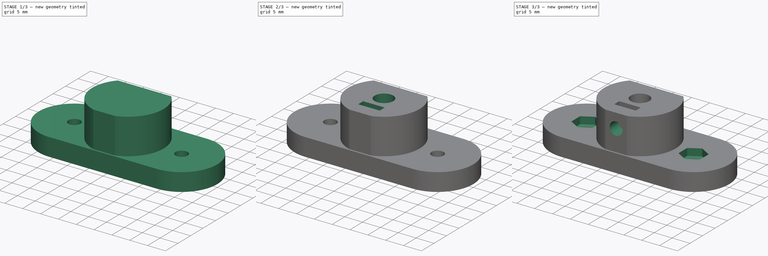
[diagram: build sequence overview — one tinted view per stage of 3, left to right]
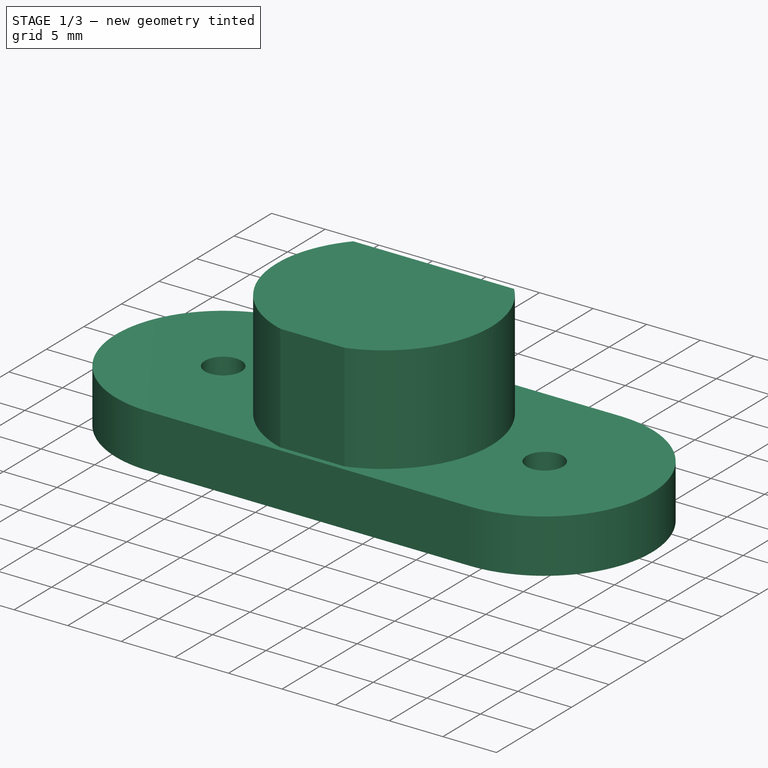
[diagram: stage 1 of 3 — iso view after this stage's code; geometry added in this stage tinted green]
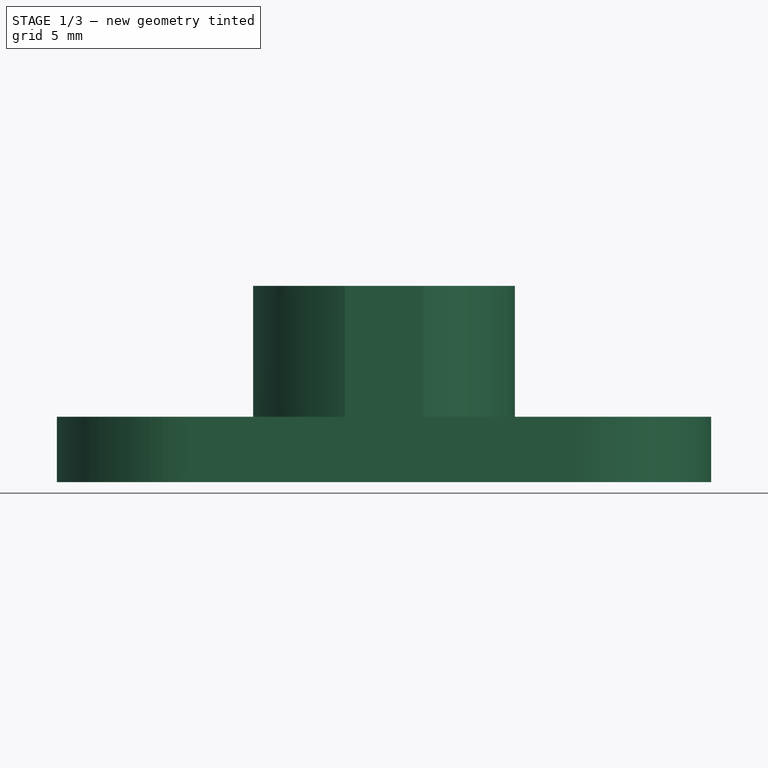
[diagram: stage 1 of 3 — front view after this stage's code; geometry added in this stage tinted green]
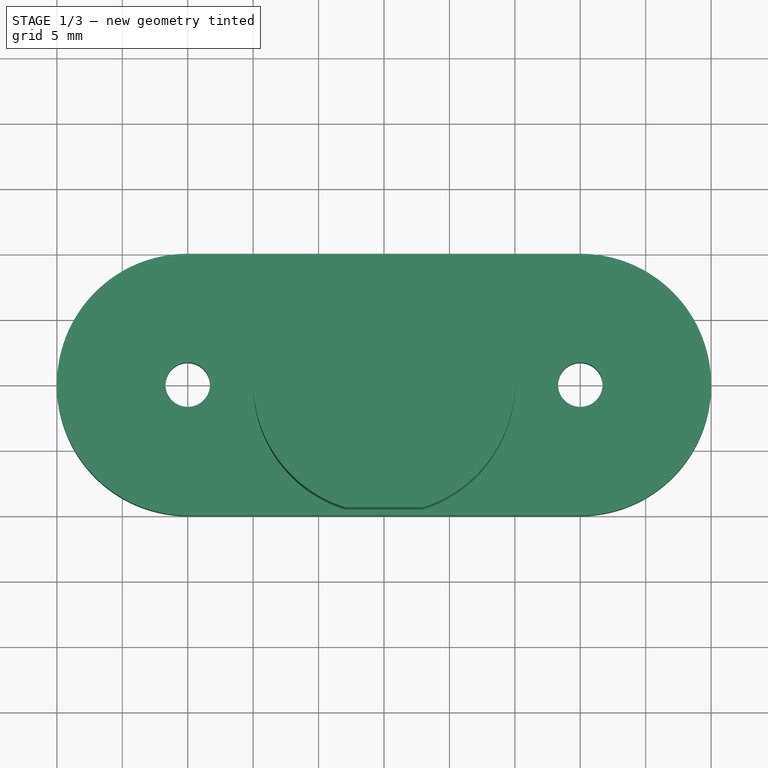
[diagram: stage 1 of 3 — top view after this stage's code; geometry added in this stage tinted green]
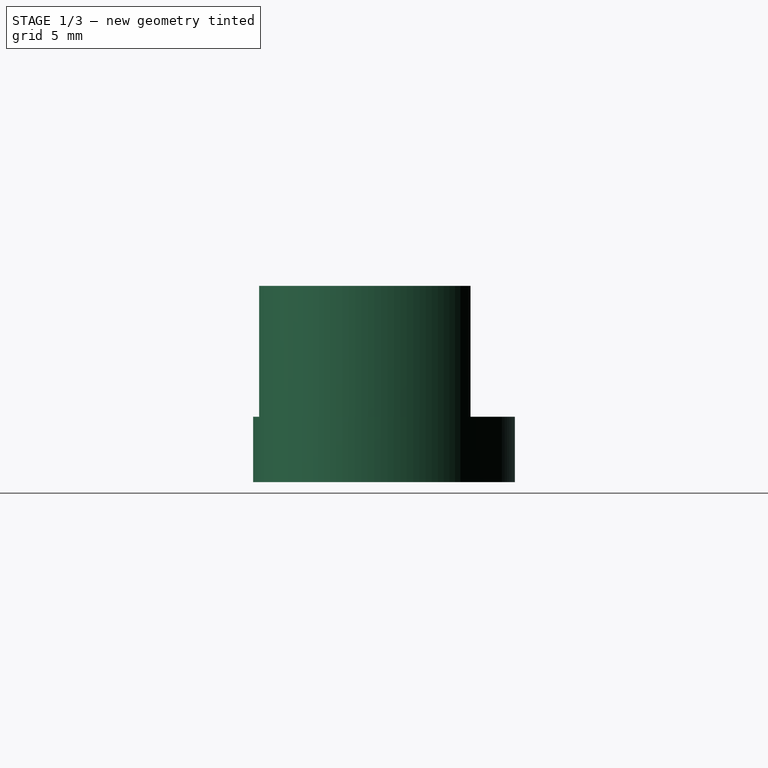
[diagram: stage 1 of 3 — right view after this stage's code; geometry added in this stage tinted green]
FCSTD DOCUMENT
Label: AmrShaftCoupler
objects: Sketcher::SketchObject×6, PartDesign::Pocket×4, PartDesign::Pad×2
note: 14 computed .brp shape members not serialized (recipe doc carries the construction recipe); baked Part::Feature solids carry a one-line shape summary decoded from their .brp

FEATURE [Sketcher::SketchObject] Sketch
  sketch-geometry (6):
    g0: ArcOfCircle CenterX=10 CenterY=10 CenterZ=0 NormalX=0 NormalY=0 NormalZ=1 Radius=10 StartAngle=1.5708 EndAngle=4.71239
    g1: ArcOfCircle CenterX=39.9999 CenterY=10 CenterZ=0 NormalX=0 NormalY=0 NormalZ=1 Radius=10 StartAngle=4.71239 EndAngle=7.85398
    g2: LineSegment StartX=10 StartY=20 StartZ=0 EndX=39.9999 EndY=20 EndZ=0
    g3: LineSegment StartX=9.99997 StartY=0 StartZ=0 EndX=40 EndY=0 EndZ=0
    g4: Circle CenterX=39.9999 CenterY=10 CenterZ=0 NormalX=0 NormalY=0 NormalZ=1 Radius=1.7
    g5: Circle CenterX=10 CenterY=10 CenterZ=0 NormalX=0 NormalY=0 NormalZ=1 Radius=1.7
  constraints (18):
    c: Coincident(g2,g0)
    c: Coincident(g2,g1)
    c: Horizontal(g2)
    c: Coincident(g3,g0)
    c: Coincident(g3,g1)
    c: Horizontal(g3)
    c: Tangent(g0,g2)
    c: Tangent(g2,g1)
    c: Tangent(g1,g3)
    c: Tangent(g3,g0)
    c: Coincident(g4,g1)
    c: Coincident(g5,g0)
    c: Equal(g5,g4)
    c: Radius(g5) = 1.7
    c: Radius(g1) = 10
    c: DistanceX(g3) = 30
    c: DistanceX(g0) = 10
    c: DistanceY(g0) = 10
FEATURE [PartDesign::Pad] Pad
  Length = 5
  MirroredExtent = false
  Sketch = -> Sketch
FEATURE [Sketcher::SketchObject] Sketch001
  Placement = pos=(0,0,5) rot=(0,0,1;0rad)
  Support = -> Pad [Face8]
  sketch-geometry (4):
    g0: ArcOfCircle CenterX=25 CenterY=10 CenterZ=0 NormalX=0 NormalY=0 NormalZ=1 Radius=10 StartAngle=5.01708 EndAngle=7.00592
    g1: ArcOfCircle CenterX=25 CenterY=10 CenterZ=0 NormalX=0 NormalY=0 NormalZ=1 Radius=10 StartAngle=2.41886 EndAngle=4.4077
    g2: LineSegment StartX=17.5 StartY=16.6144 StartZ=0 EndX=32.5 EndY=16.6144 EndZ=0
    g3: LineSegment StartX=22 StartY=0.460608 StartZ=0 EndX=28 EndY=0.460608 EndZ=0
  constraints (13):
    c: Coincident(g1,g0)
    c: Equal(g0,g1)
    c: Radius(g0) = 10
    c: Coincident(g2,g1)
    c: Coincident(g2,g0)
    c: Horizontal(g2)
    c: Coincident(g3,g1)
    c: Coincident(g3,g0)
    c: Horizontal(g3)
    c: DistanceX(g0) = 25
    c: DistanceY(g0) = 10
    c: DistanceX(g3) = 6
    c: DistanceX(g2) = 15
FEATURE [PartDesign::Pad] Pad001
  Length = 10
  MirroredExtent = false
  Sketch = -> Sketch001
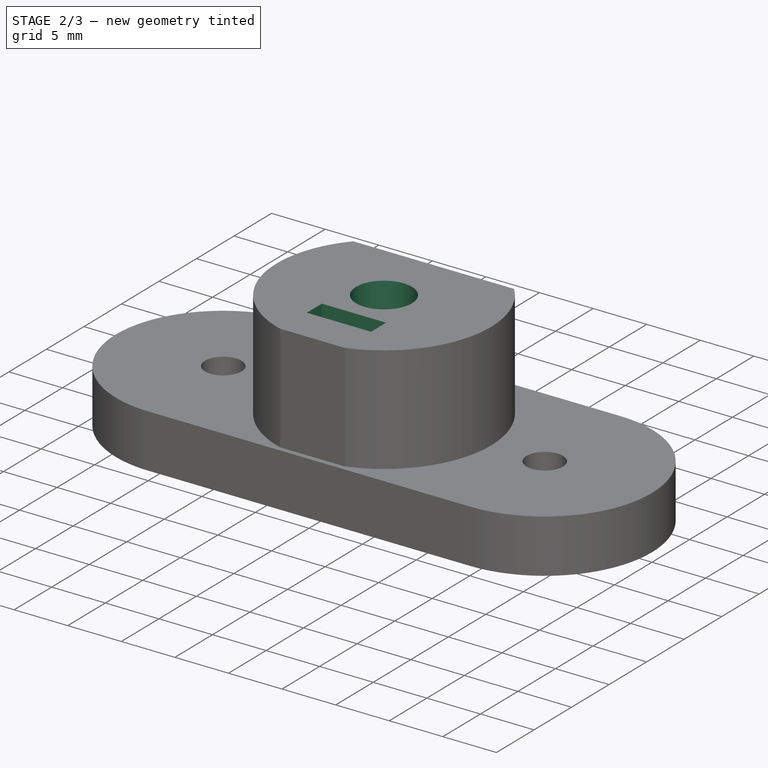
[diagram: stage 2 of 3 — iso view after this stage's code; geometry added in this stage tinted green]
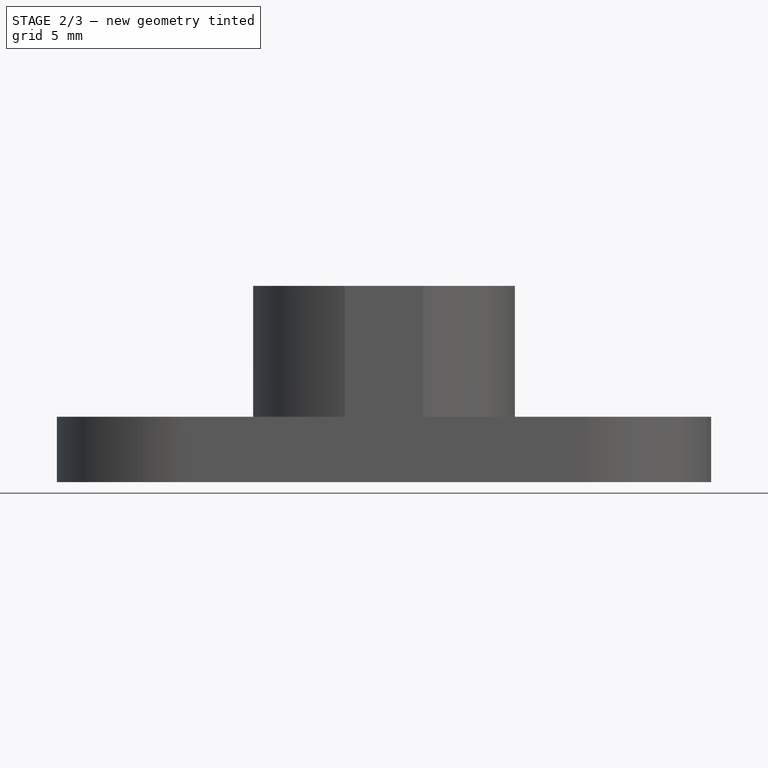
[diagram: stage 2 of 3 — front view after this stage's code; geometry added in this stage tinted green]
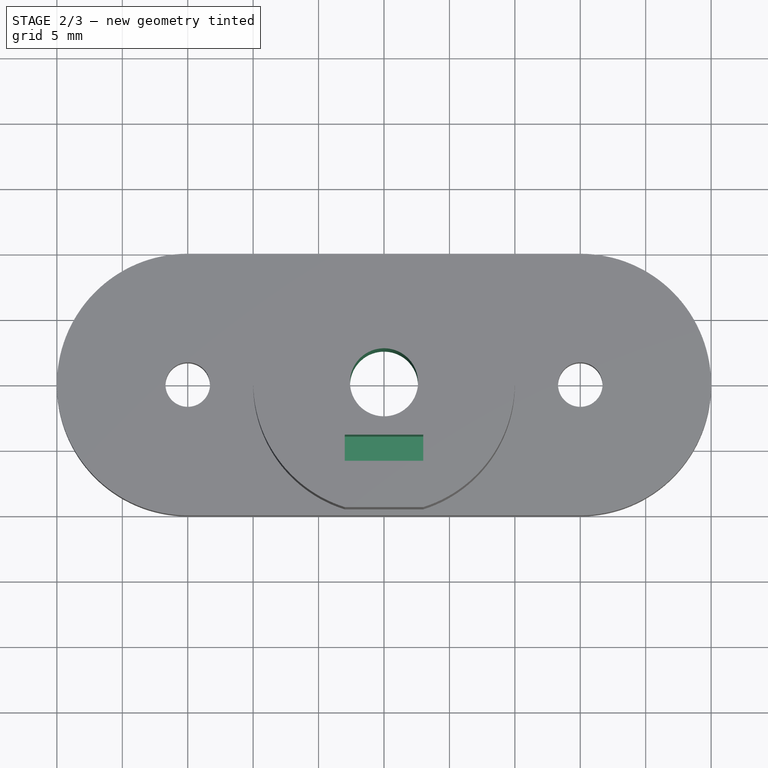
[diagram: stage 2 of 3 — top view after this stage's code; geometry added in this stage tinted green]
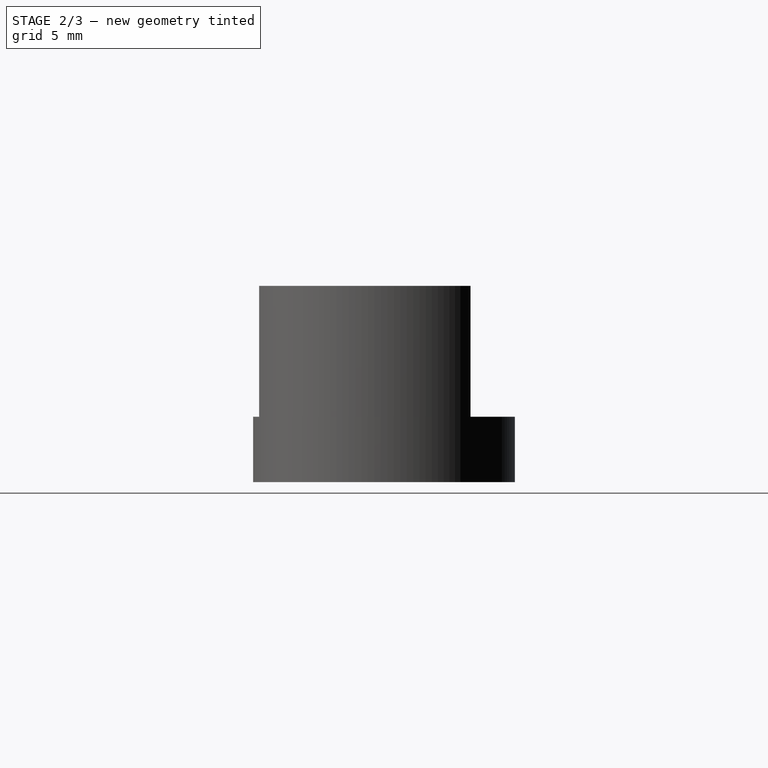
[diagram: stage 2 of 3 — right view after this stage's code; geometry added in this stage tinted green]
FEATURE [Sketcher::SketchObject] Sketch002
  Placement = pos=(0,0,15) rot=(0,0,1;0rad)
  Support = -> Pad001 [Face13]
  sketch-geometry (1):
    g0: Circle CenterX=25 CenterY=10 CenterZ=0 NormalX=0 NormalY=0 NormalZ=1 Radius=2.6
  constraints (3):
    c: DistanceX(g0) = 25
    c: DistanceY(g0) = 10
    c: Radius(g0) = 2.6
FEATURE [PartDesign::Pocket] Pocket
  Length = 15
  Sketch = -> Sketch002
  Type = 0
FEATURE [Sketcher::SketchObject] Sketch003
  Placement = pos=(0,0,15) rot=(0,0,1;0rad)
  Support = -> Pocket [Face14]
  sketch-geometry (5):
    g0: LineSegment StartX=22 StartY=6 StartZ=0 EndX=28 EndY=6 EndZ=0
    g1: LineSegment StartX=28 StartY=6 StartZ=0 EndX=28 EndY=4 EndZ=0
    g2: LineSegment StartX=22 StartY=4 StartZ=0 EndX=22 EndY=6 EndZ=0
    g3: LineSegment StartX=22 StartY=4 StartZ=0 EndX=25 EndY=4 EndZ=0
    g4: LineSegment StartX=25 StartY=4 StartZ=0 EndX=28 EndY=4 EndZ=0
  constraints (15):
    c: Coincident(g0,g1)
    c: Coincident(g2,g0)
    c: Horizontal(g0)
    c: Vertical(g1)
    c: Vertical(g2)
    c: Coincident(g3,g2)
    c: Coincident(g3,g4)
    c: Coincident(g4,g1)
    c: Horizontal(g3)
    c: Horizontal(g4)
    c: Equal(g4,g3)
    c: DistanceX(g2,g1) = 6
    c: DistanceY(g2) = 2
    c: DistanceX(g3) = 25
    c: DistanceY(g3) = 4
FEATURE [PartDesign::Pocket] Pocket001
  Length = 9
  Sketch = -> Sketch003
  Type = 0
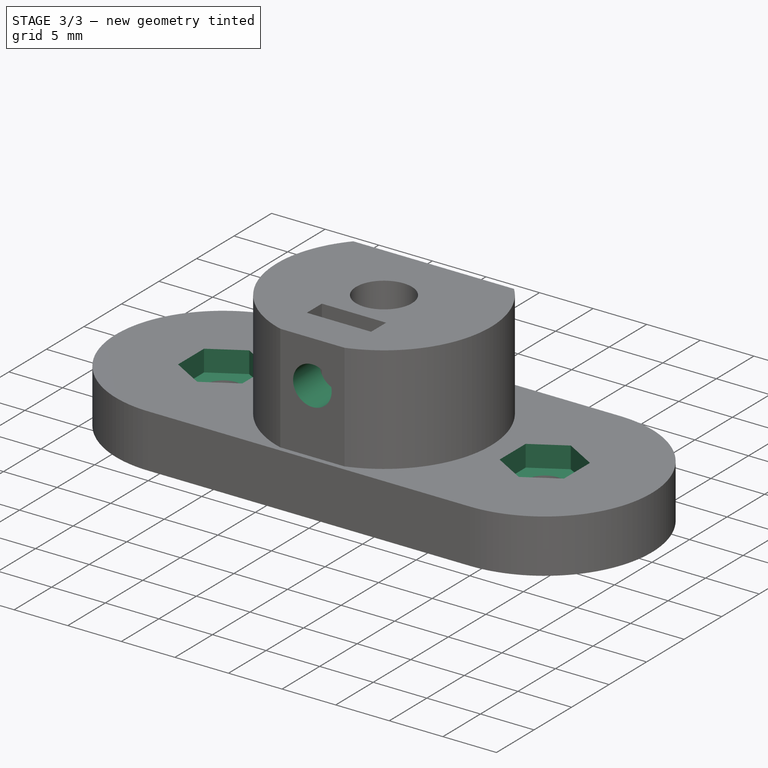
[diagram: stage 3 of 3 — iso view after this stage's code; geometry added in this stage tinted green]
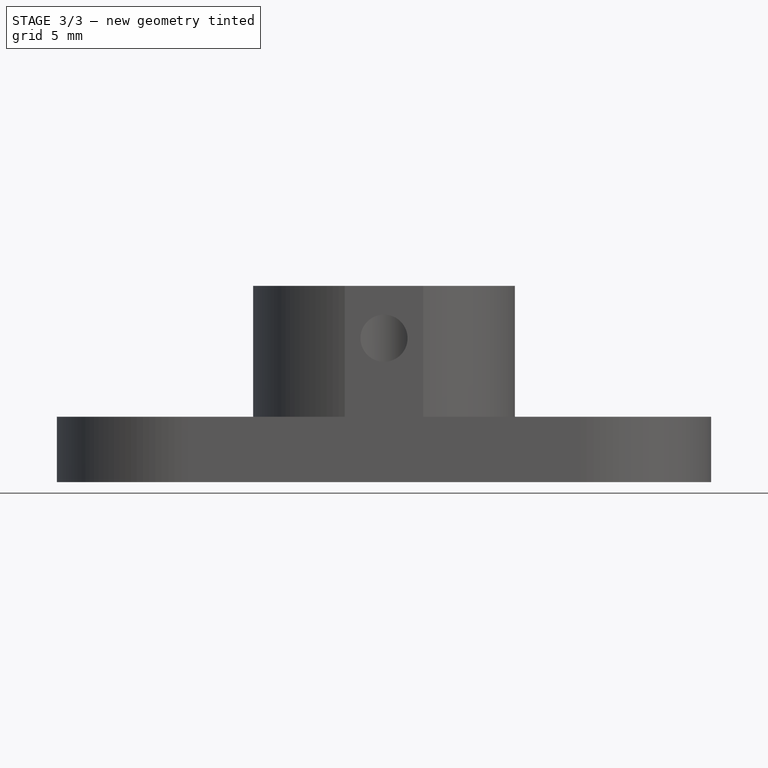
[diagram: stage 3 of 3 — front view after this stage's code; geometry added in this stage tinted green]
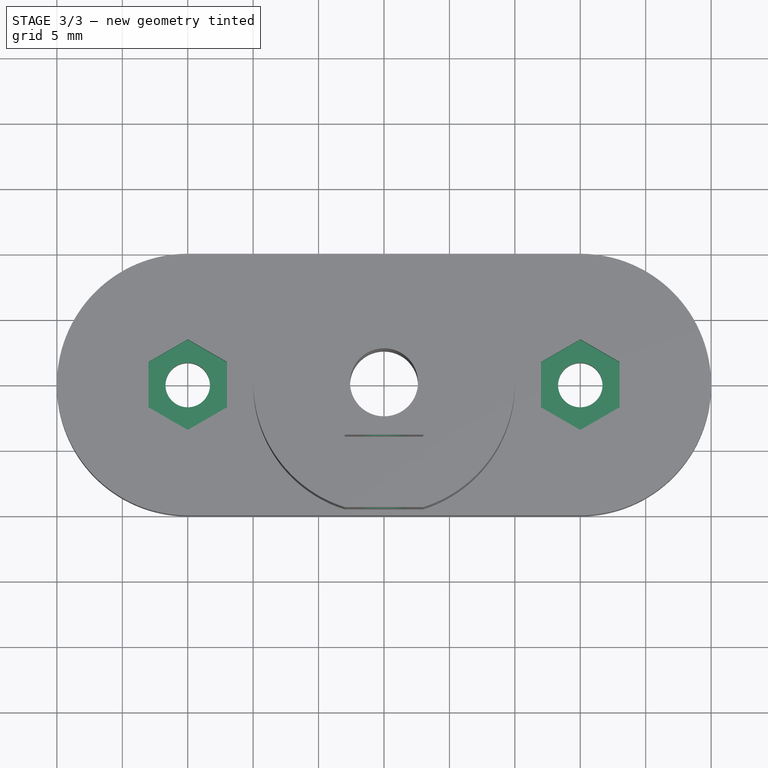
[diagram: stage 3 of 3 — top view after this stage's code; geometry added in this stage tinted green]
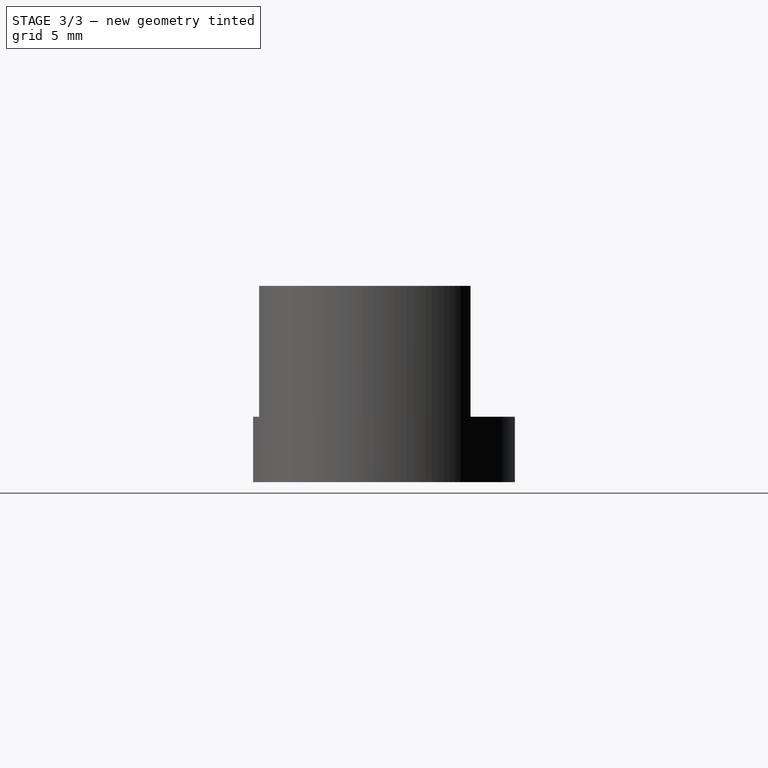
[diagram: stage 3 of 3 — right view after this stage's code; geometry added in this stage tinted green]
FEATURE [Sketcher::SketchObject] Sketch004
  Placement = pos=(0,0.460608,0) rot=(1,0,0;1.5708rad)
  Support = -> Pocket001 [Face10]
  sketch-geometry (1):
    g0: Circle CenterX=25 CenterY=11 CenterZ=0 NormalX=0 NormalY=0 NormalZ=1 Radius=1.8
  constraints (3):
    c: DistanceX(g0) = 25
    c: DistanceY(g0) = 11
    c: Radius(g0) = 1.8
FEATURE [PartDesign::Pocket] Pocket002
  Length = 8
  Sketch = -> Sketch004
  Type = 0
FEATURE [Sketcher::SketchObject] Sketch005
  Placement = pos=(0,0,5) rot=(0,0,1;0rad)
  Support = -> Pocket002 [Face5]
  sketch-geometry (22):
    g0: LineSegment StartX=6.99838 StartY=8.26795 StartZ=0 EndX=6.99838 EndY=11.7321 EndZ=0
    g1: LineSegment StartX=6.99838 StartY=11.7321 StartZ=0 EndX=9.99838 EndY=13.4641 EndZ=0
    g2: LineSegment StartX=9.99838 StartY=13.4641 StartZ=0 EndX=12.9984 EndY=11.7321 EndZ=0
    g3: LineSegment StartX=12.9984 StartY=11.7321 StartZ=0 EndX=12.9984 EndY=8.26795 EndZ=0
    g4: LineSegment StartX=12.9984 StartY=8.26795 StartZ=0 EndX=9.99838 EndY=6.5359 EndZ=0
    g5: LineSegment StartX=9.99838 StartY=6.5359 StartZ=0 EndX=6.99838 EndY=8.26795 EndZ=0
    g6: LineSegment [constr] StartX=12.9984 StartY=11.7321 StartZ=0 EndX=9.99838 EndY=10 EndZ=0
    g7: LineSegment [constr] StartX=9.99838 StartY=10 StartZ=0 EndX=12.9984 EndY=8.26795 EndZ=0
    g8: LineSegment [constr] StartX=6.99838 StartY=11.7321 StartZ=0 EndX=9.99838 EndY=10 EndZ=0
    g9: LineSegment [constr] StartX=9.99838 StartY=10 StartZ=0 EndX=6.99838 EndY=8.26795 EndZ=0
    g10: LineSegment [constr] StartX=9.99838 StartY=10 StartZ=0 EndX=9.99838 EndY=6.5359 EndZ=0
    g11: LineSegment StartX=40 StartY=13.4641 StartZ=0 EndX=43 EndY=11.7321 EndZ=0
    g12: LineSegment StartX=43 StartY=11.7321 StartZ=0 EndX=43 EndY=8.26795 EndZ=0
    g13: LineSegment StartX=43 StartY=8.26795 StartZ=0 EndX=40 EndY=6.5359 EndZ=0
    g14: LineSegment StartX=40 StartY=6.5359 StartZ=0 EndX=37 EndY=8.26795 EndZ=0
    g15: LineSegment StartX=37 StartY=8.26795 StartZ=0 EndX=37 EndY=11.732 EndZ=0
    g16: LineSegment StartX=37 StartY=11.732 StartZ=0 EndX=40 EndY=13.4641 EndZ=0
    g17: LineSegment [constr] StartX=43 StartY=11.7321 StartZ=0 EndX=40 EndY=10 EndZ=0
    g18: LineSegment [constr] StartX=40 StartY=10 StartZ=0 EndX=43 EndY=8.26795 EndZ=0
    g19: LineSegment [constr] StartX=37 StartY=11.732 StartZ=0 EndX=40 EndY=10 EndZ=0
    g20: LineSegment [constr] StartX=40 StartY=10 StartZ=0 EndX=37 EndY=8.26795 EndZ=0
    g21: LineSegment [constr] StartX=40 StartY=10 StartZ=0 EndX=40 EndY=6.5359 EndZ=0
  constraints (58):
    c: Coincident(g0,g1)
    c: Coincident(g1,g2)
    c: Coincident(g2,g3)
    c: Vertical(g3)
    c: Coincident(g3,g4)
    c: Coincident(g4,g5)
    c: Coincident(g5,g0)
    c: Vertical(g0)
    c: Equal(g0,g1)
    c: Equal(g1,g2)
    c: Equal(g2,g3)
    c: Equal(g3,g4)
    c: Equal(g4,g5)
    c: Coincident(g6,g2)
    c: Coincident(g6,g7)
    c: Coincident(g7,g3)
    c: Coincident(g8,g0)
    c: Coincident(g8,g6)
    c: Coincident(g8,g9)
    c: Coincident(g9,g0)
    c: Equal(g9,g6)
    c: Equal(g6,g7)
    c: Equal(g7,g8)
    c: DistanceX(g0,g3) = 6
    c: Coincident(g10,g6)
    c: Coincident(g10,g4)
    c: Equal(g10,g9)
    c: DistanceX(g6) = 9.99838
    c: DistanceY(g6) = 10
    c: Coincident(g11,g12)
    c: Vertical(g12)
    c: Coincident(g12,g13)
    c: Coincident(g13,g14)
    c: Coincident(g14,g15)
    c: Vertical(g15)
    c: Coincident(g15,g16)
    c: Coincident(g16,g11)
    c: Equal(g12,g13)
    c: Equal(g13,g14)
    c: Equal(g14,g15)
    c: Equal(g15,g16)
    c: Equal(g16,g11)
    c: Coincident(g17,g11)
    c: Coincident(g17,g18)
    c: Coincident(g18,g12)
    c: Coincident(g19,g15)
    c: Coincident(g19,g17)
    c: Coincident(g19,g20)
    c: Coincident(g20,g14)
    c: Equal(g18,g17)
    c: Equal(g17,g19)
    c: Coincident(g21,g17)
    c: Coincident(g21,g13)
    c: Vertical(g21)
    c: Equal(g21,g20)
    c: DistanceX(g14,g12) = 6
    c: DistanceX(g17) = 40
    c: DistanceY(g17) = 10
FEATURE [PartDesign::Pocket] Pocket003
  Length = 2
  Sketch = -> Sketch005
  Type = 0
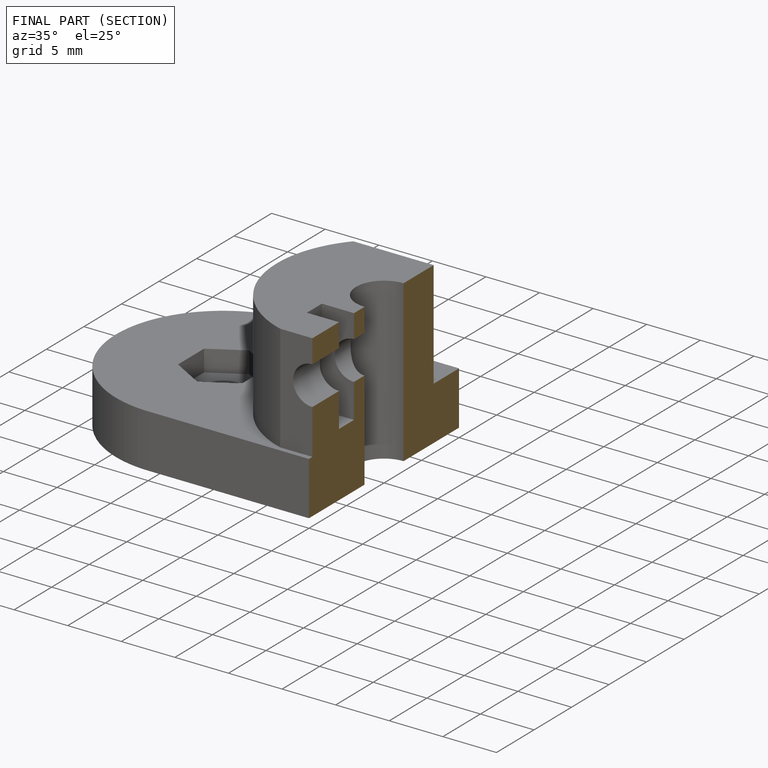
[diagram: finished part — half-section view (interior)]
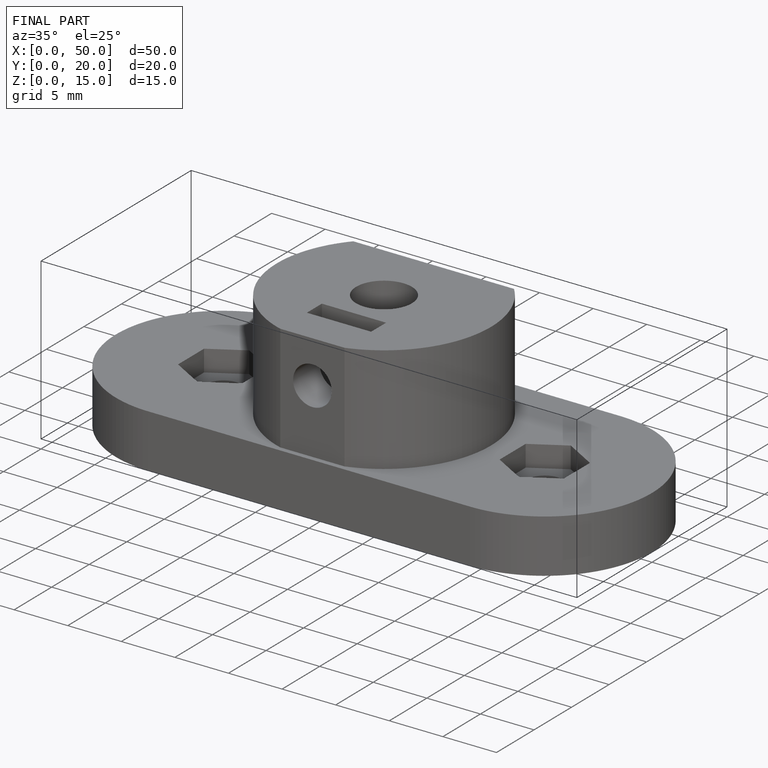
[diagram: finished part — iso view with bounding-box wireframe]
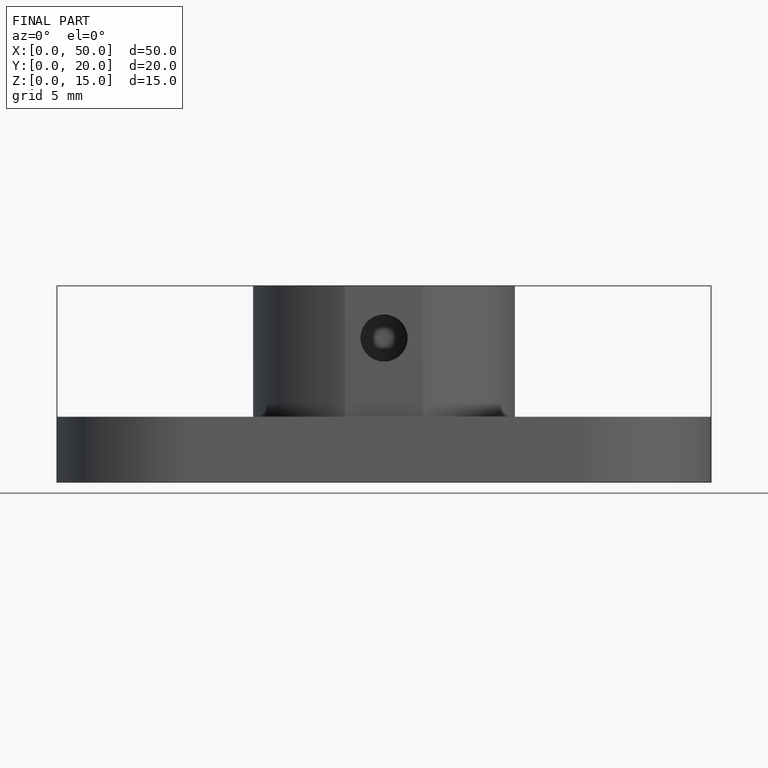
[diagram: finished part — front view with bounding-box wireframe]
